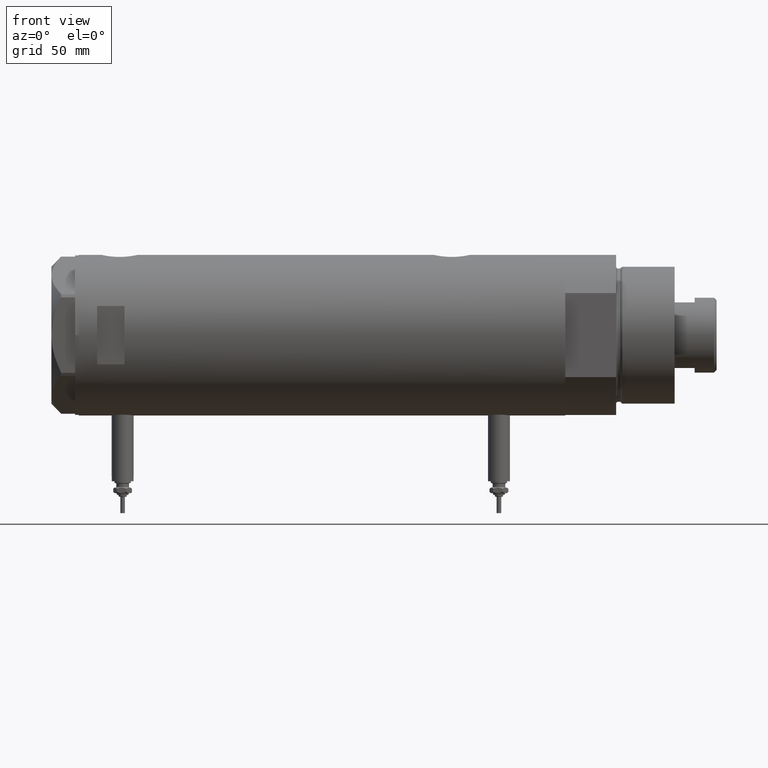
[diagram: clean part render]
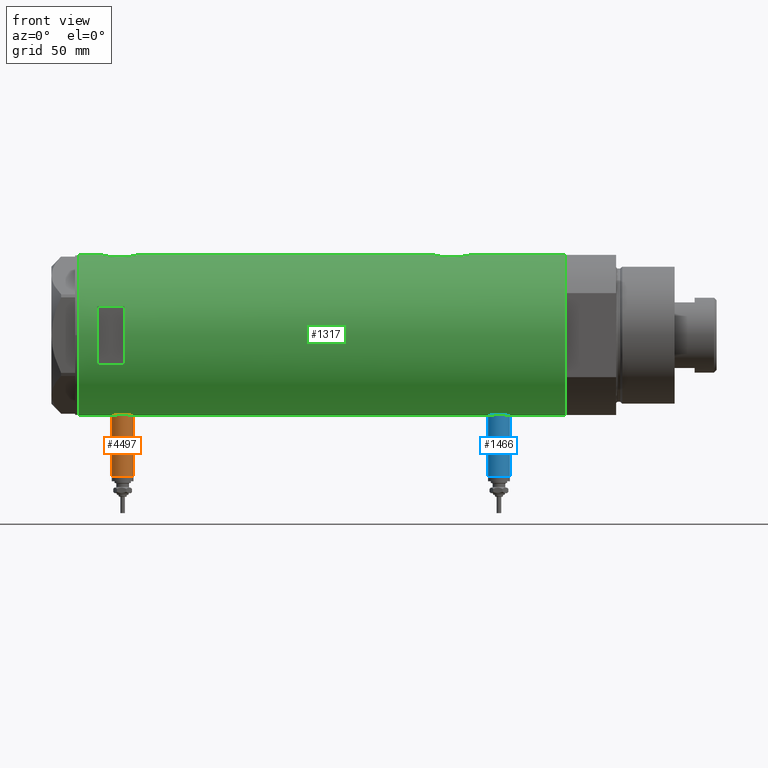
[diagram: same view with three faces highlighted in distinct colors, each labeled with its STEP entity id]
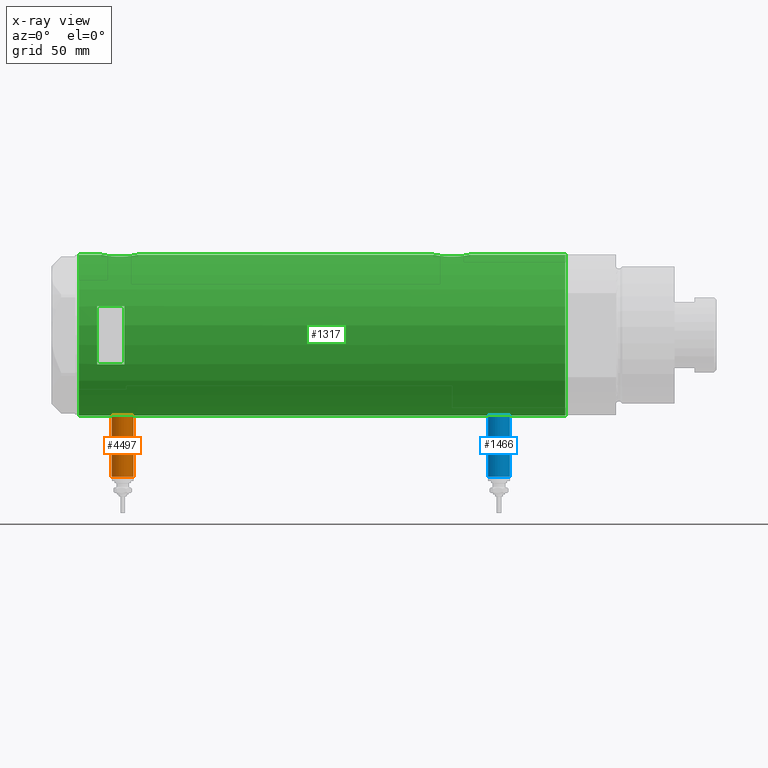
[diagram: x-ray of the same camera — body ghosted, the three highlighted faces saturated]
A machine part, front view with three faces highlighted in distinct colors.
The next image is the same camera in x-ray (body ghosted, the three faces saturated) — at least one of them is partly hidden behind the body in this view.
Their STEP definitions:

[orange] entity #4497 — the highlighted cylindrical surface (edge-blend (fillet) strip) has radius 6 mm, axis along (0, 0, 1).
#57 = DIRECTION ( 'NONE',  ( -1.000000000000000000, 0.000000000000000000, 0.000000000000000000 ) ) ;
#254 = CARTESIAN_POINT ( 'NONE',  ( -42.79999999999999716, 7.347880794884101001E-16, 115.1999999999999886 ) ) ;
#304 = VECTOR ( 'NONE', #820, 1000.000000000000000 ) ;
#659 = FACE_OUTER_BOUND ( 'NONE', #5389, .T. ) ;
#675 = CARTESIAN_POINT ( 'NONE',  ( -77.50000000000000000, 0.000000000000000000, 109.1999999999999886 ) ) ;
#746 = CARTESIAN_POINT ( 'NONE',  ( -77.50000000000000000, 7.347880794884104945E-16, 115.1999999999999886 ) ) ;
#801 = ORIENTED_EDGE ( 'NONE', *, *, #4834, .T. ) ;
#820 = DIRECTION ( 'NONE',  ( 1.000000000000000000, -0.000000000000000000, -0.000000000000000000 ) ) ;
#898 = ORIENTED_EDGE ( 'NONE', *, *, #4235, .F. ) ;
#1058 = EDGE_CURVE ( 'NONE', #4619, #3372, #2117, .T. ) ;
#1152 = CARTESIAN_POINT ( 'NONE',  ( -42.79999999999999716, 0.000000000000000000, 103.2000000000000028 ) ) ;
#1611 = DIRECTION ( 'NONE',  ( -1.000000000000000000, 0.000000000000000000, 0.000000000000000000 ) ) ;
#1788 = AXIS2_PLACEMENT_3D ( 'NONE', #675, #1611, #4361 ) ;
#2117 = LINE ( 'NONE', #4927, #304 ) ;
#2371 = CIRCLE ( 'NONE', #1788, 5.999999999999991118 ) ;
#2513 = DIRECTION ( 'NONE',  ( 1.000000000000000000, -0.000000000000000000, -0.000000000000000000 ) ) ;
#2877 = ORIENTED_EDGE ( 'NONE', *, *, #1058, .T. ) ;
#3140 = CARTESIAN_POINT ( 'NONE',  ( -77.50000000000000000, 7.347880794884101001E-16, 115.1999999999999886 ) ) ;
#3178 = ORIENTED_EDGE ( 'NONE', *, *, #4417, .F. ) ;
#3372 = VERTEX_POINT ( 'NONE', #1152 ) ;
#3474 = LINE ( 'NONE', #746, #3729 ) ;
#3681 = CARTESIAN_POINT ( 'NONE',  ( -77.50000000000000000, 0.000000000000000000, 103.2000000000000028 ) ) ;
#3729 = VECTOR ( 'NONE', #4462, 1000.000000000000000 ) ;
#3931 = CARTESIAN_POINT ( 'NONE',  ( -77.50000000000000000, 0.000000000000000000, 109.1999999999999886 ) ) ;
#4227 = AXIS2_PLACEMENT_3D ( 'NONE', #3931, #2513, #4373 ) ;
#4235 = EDGE_CURVE ( 'NONE', #4619, #5985, #2371, .T. ) ;
#4250 = CARTESIAN_POINT ( 'NONE',  ( -42.79999999999999716, 0.000000000000000000, 109.1999999999999886 ) ) ;
#4361 = DIRECTION ( 'NONE',  ( 0.000000000000000000, 0.000000000000000000, 1.000000000000000000 ) ) ;
#4373 = DIRECTION ( 'NONE',  ( 0.000000000000000000, 0.000000000000000000, -1.000000000000000000 ) ) ;
#4417 = EDGE_CURVE ( 'NONE', #5985, #5890, #3474, .T. ) ;
#4462 = DIRECTION ( 'NONE',  ( 1.000000000000000000, -0.000000000000000000, -0.000000000000000000 ) ) ;
#4492 = AXIS2_PLACEMENT_3D ( 'NONE', #4250, #57, #5617 ) ;
#4497 = ADVANCED_FACE ( 'NONE', ( #659 ), #4879, .T. ) ;
#4619 = VERTEX_POINT ( 'NONE', #3681 ) ;
#4834 = EDGE_CURVE ( 'NONE', #3372, #5890, #5918, .T. ) ;
#4879 = CYLINDRICAL_SURFACE ( 'NONE', #4227, 5.999999999999991118 ) ;
#4927 = CARTESIAN_POINT ( 'NONE',  ( -77.50000000000000000, 0.000000000000000000, 103.2000000000000028 ) ) ;
#5389 = EDGE_LOOP ( 'NONE', ( #3178, #898, #2877, #801 ) ) ;
#5617 = DIRECTION ( 'NONE',  ( 0.000000000000000000, 0.000000000000000000, 1.000000000000000000 ) ) ;
#5890 = VERTEX_POINT ( 'NONE', #254 ) ;
#5918 = CIRCLE ( 'NONE', #4492, 5.999999999999991118 ) ;
#5985 = VERTEX_POINT ( 'NONE', #3140 ) ;

[blue] entity #1466 — the highlighted cylindrical surface (edge-blend (fillet) strip) has radius 6 mm, axis along (0, 0, 1).
#54 = LINE ( 'NONE', #83, #516 ) ;
#83 = CARTESIAN_POINT ( 'NONE',  ( -77.50000000000000000, 7.347880794884122694E-16, -90.89999999999997726 ) ) ;
#153 = ORIENTED_EDGE ( 'NONE', *, *, #3503, .T. ) ;
#182 = ORIENTED_EDGE ( 'NONE', *, *, #5300, .F. ) ;
#284 = DIRECTION ( 'NONE',  ( 0.000000000000000000, 0.000000000000000000, 1.000000000000000000 ) ) ;
#516 = VECTOR ( 'NONE', #3741, 1000.000000000000000 ) ;
#640 = CARTESIAN_POINT ( 'NONE',  ( -77.50000000000000000, 0.000000000000000000, -102.8999999999999915 ) ) ;
#677 = EDGE_LOOP ( 'NONE', ( #4439, #182, #1739, #153 ) ) ;
#915 = CIRCLE ( 'NONE', #4234, 6.000000000000005329 ) ;
#999 = DIRECTION ( 'NONE',  ( -1.000000000000000000, 0.000000000000000000, 0.000000000000000000 ) ) ;
#1229 = CYLINDRICAL_SURFACE ( 'NONE', #3514, 6.000000000000005329 ) ;
#1231 = DIRECTION ( 'NONE',  ( -1.000000000000000000, 0.000000000000000000, 0.000000000000000000 ) ) ;
#1327 = CARTESIAN_POINT ( 'NONE',  ( -42.79999999999999716, 0.000000000000000000, -102.8999999999999915 ) ) ;
#1462 = CARTESIAN_POINT ( 'NONE',  ( -42.79999999999999716, 7.347880794884119736E-16, -90.89999999999997726 ) ) ;
#1466 = ADVANCED_FACE ( 'NONE', ( #1603 ), #1229, .T. ) ;
#1603 = FACE_OUTER_BOUND ( 'NONE', #677, .T. ) ;
#1739 = ORIENTED_EDGE ( 'NONE', *, *, #5141, .T. ) ;
#2019 = LINE ( 'NONE', #640, #5632 ) ;
#2159 = EDGE_CURVE ( 'NONE', #5445, #4836, #54, .T. ) ;
#2222 = CARTESIAN_POINT ( 'NONE',  ( -77.50000000000000000, 0.000000000000000000, -96.89999999999999147 ) ) ;
#2778 = CARTESIAN_POINT ( 'NONE',  ( -77.50000000000000000, 0.000000000000000000, -102.8999999999999915 ) ) ;
#2824 = DIRECTION ( 'NONE',  ( 0.000000000000000000, 0.000000000000000000, 1.000000000000000000 ) ) ;
#3119 = AXIS2_PLACEMENT_3D ( 'NONE', #4057, #1231, #284 ) ;
#3125 = CIRCLE ( 'NONE', #3119, 6.000000000000005329 ) ;
#3148 = DIRECTION ( 'NONE',  ( 0.000000000000000000, 0.000000000000000000, -1.000000000000000000 ) ) ;
#3503 = EDGE_CURVE ( 'NONE', #4987, #4836, #915, .T. ) ;
#3514 = AXIS2_PLACEMENT_3D ( 'NONE', #2222, #3632, #3148 ) ;
#3632 = DIRECTION ( 'NONE',  ( 1.000000000000000000, -0.000000000000000000, -0.000000000000000000 ) ) ;
#3741 = DIRECTION ( 'NONE',  ( 1.000000000000000000, -0.000000000000000000, -0.000000000000000000 ) ) ;
#4057 = CARTESIAN_POINT ( 'NONE',  ( -77.50000000000000000, 0.000000000000000000, -96.89999999999999147 ) ) ;
#4162 = CARTESIAN_POINT ( 'NONE',  ( -42.79999999999999716, 0.000000000000000000, -96.89999999999999147 ) ) ;
#4234 = AXIS2_PLACEMENT_3D ( 'NONE', #4162, #999, #2824 ) ;
#4439 = ORIENTED_EDGE ( 'NONE', *, *, #2159, .F. ) ;
#4555 = VERTEX_POINT ( 'NONE', #2778 ) ;
#4836 = VERTEX_POINT ( 'NONE', #1462 ) ;
#4987 = VERTEX_POINT ( 'NONE', #1327 ) ;
#5141 = EDGE_CURVE ( 'NONE', #4555, #4987, #2019, .T. ) ;
#5192 = DIRECTION ( 'NONE',  ( 1.000000000000000000, -0.000000000000000000, -0.000000000000000000 ) ) ;
#5300 = EDGE_CURVE ( 'NONE', #4555, #5445, #3125, .T. ) ;
#5445 = VERTEX_POINT ( 'NONE', #5570 ) ;
#5570 = CARTESIAN_POINT ( 'NONE',  ( -77.50000000000000000, 7.347880794884119736E-16, -90.89999999999997726 ) ) ;
#5632 = VECTOR ( 'NONE', #5192, 1000.000000000000000 ) ;

[green] entity #1317 — the highlighted cylindrical surface (partial cylindrical patch) has radius 44 mm, axis along (-1, -0, 0).
#18 = CARTESIAN_POINT ( 'NONE',  ( 43.77763691689010983, -4.427538730370037534, -62.12757287791929173 ) ) ;
#106 = CARTESIAN_POINT ( 'NONE',  ( 43.98543813568861793, -1.304985013906736713, 120.8365306627387525 ) ) ;
#107 = VECTOR ( 'NONE', #5925, 1000.000000000000000 ) ;
#120 = VERTEX_POINT ( 'NONE', #2300 ) ;
#149 = CARTESIAN_POINT ( 'NONE',  ( 43.35257225115238100, -7.523216248090028202, 104.3039469640765304 ) ) ;
#151 = CARTESIAN_POINT ( 'NONE',  ( -43.93596008603760339, -2.395372424984027582, 103.4165081946938756 ) ) ;
#175 = CARTESIAN_POINT ( 'NONE',  ( 43.39114022679083860, -7.298186114522533074, 117.7441727949206154 ) ) ;
#179 = CARTESIAN_POINT ( 'NONE',  ( -43.55388615229803406, -6.249720082677240107, 108.7826748588801706 ) ) ;
#180 = CARTESIAN_POINT ( 'NONE',  ( 0.000000000000000000, 0.000000000000000000, 123.1999999999999744 ) ) ;
#181 = CARTESIAN_POINT ( 'NONE',  ( -44.00000000000000000, 5.388445781982983516E-15, -103.1499999999999915 ) ) ;
#187 = CARTESIAN_POINT ( 'NONE',  ( -43.83513771791772484, -3.820747781112549202, -91.93678981703624231 ) ) ;
#203 = CARTESIAN_POINT ( 'NONE',  ( -43.87623998657198143, -3.302247739865014964, 103.8896565648025643 ) ) ;
#209 = CARTESIAN_POINT ( 'NONE',  ( -44.00000000000000000, 5.388445916248353619E-15, -133.1999999999999886 ) ) ;
#220 = ORIENTED_EDGE ( 'NONE', *, *, #2135, .F. ) ;
#235 = CARTESIAN_POINT ( 'NONE',  ( 42.86761451923558042, -9.918101748202658996, 112.2186752354962636 ) ) ;
#240 = CARTESIAN_POINT ( 'NONE',  ( -43.91347832647110039, -2.763895659397271665, 103.5906135062241447 ) ) ;
#243 = VECTOR ( 'NONE', #497, 1000.000000000000000 ) ;
#264 = CARTESIAN_POINT ( 'NONE',  ( -43.83572624786197025, -3.813948911733268776, 104.2316356977933935 ) ) ;
#270 = CARTESIAN_POINT ( 'NONE',  ( -43.87623998657198143, -3.302247739865014964, -102.2103434351974158 ) ) ;
#318 = CIRCLE ( 'NONE', #1109, 44.00000000000000000 ) ;
#357 = VERTEX_POINT ( 'NONE', #3507 ) ;
#385 = CARTESIAN_POINT ( 'NONE',  ( -43.58327167020068060, -6.041691433183235205, 110.8132755078336373 ) ) ;
#475 = CARTESIAN_POINT ( 'NONE',  ( -44.00000000000000000, 4.742435893011557518E-16, -90.64999999999997726 ) ) ;
#479 = CARTESIAN_POINT ( 'NONE',  ( 43.88549648731376607, -3.229309612650775652, -61.61335697513614917 ) ) ;
#483 = CARTESIAN_POINT ( 'NONE',  ( 15.96871942267132027, -40.99999999999999289, 108.1999999999999602 ) ) ;
#497 = DIRECTION ( 'NONE',  ( 0.000000000000000000, 0.000000000000000000, 1.000000000000000000 ) ) ;
#546 = EDGE_CURVE ( 'NONE', #4205, #5367, #1056, .T. ) ;
#604 = CARTESIAN_POINT ( 'NONE',  ( 43.57553740812844723, -6.102230194686623754, 102.9710034401132788 ) ) ;
#609 = CARTESIAN_POINT ( 'NONE',  ( 42.96573602780769363, -9.487415353952515673, -74.32734544583620107 ) ) ;
#644 = CARTESIAN_POINT ( 'NONE',  ( 43.80655905412562134, -4.132395729537633677, 120.0120532619375950 ) ) ;
#647 = CARTESIAN_POINT ( 'NONE',  ( -43.59994860325051036, -5.920144153815573240, 107.1859364243023975 ) ) ;
#655 = CARTESIAN_POINT ( 'NONE',  ( -43.57664920749031978, -6.089110472216501257, -98.32363086869413848 ) ) ;
#664 = ORIENTED_EDGE ( 'NONE', *, *, #4607, .T. ) ;
#674 = CARTESIAN_POINT ( 'NONE',  ( 43.50370990764398726, -6.606474645717129945, -63.56479064715113481 ) ) ;
#682 = CARTESIAN_POINT ( 'NONE',  ( -43.80623767923739109, -4.134861581628527460, -92.19563632739300374 ) ) ;
#695 = CARTESIAN_POINT ( 'NONE',  ( 43.27861175590267351, -7.937636171351968528, 104.8089713200900377 ) ) ;
#700 = CARTESIAN_POINT ( 'NONE',  ( -43.57664920749031978, -6.089110472216501257, 107.7763691313058985 ) ) ;
#733 = CARTESIAN_POINT ( 'NONE',  ( 42.92612181419237061, -9.662173761604313071, -68.50200210390286770 ) ) ;
#742 = CARTESIAN_POINT ( 'NONE',  ( -43.55981666146650610, -6.208773019004409477, -97.72437999193616065 ) ) ;
#769 = DIRECTION ( 'NONE',  ( 0.000000000000000000, 0.000000000000000000, 1.000000000000000000 ) ) ;
#865 = VERTEX_POINT ( 'NONE', #181 ) ;
#871 = CARTESIAN_POINT ( 'NONE',  ( -43.95404166778755695, -2.020054257598466574, 115.1180894548565163 ) ) ;
#879 = CARTESIAN_POINT ( 'NONE',  ( 0.000000000000000000, 0.000000000000000000, 108.1999999999999602 ) ) ;
#893 = VECTOR ( 'NONE', #4171, 1000.000000000000000 ) ;
#939 = CARTESIAN_POINT ( 'NONE',  ( 43.98543813568861793, -1.304985013906734714, -61.16346933726119772 ) ) ;
#1010 = DIRECTION ( 'NONE',  ( 0.000000000000000000, 0.000000000000000000, 1.000000000000000000 ) ) ;
#1055 = CARTESIAN_POINT ( 'NONE',  ( -15.96871942267132027, -40.99999999999999289, 108.1999999999999602 ) ) ;
#1056 = B_SPLINE_CURVE_WITH_KNOTS ( 'NONE', 3,
 ( #5810, #1998, #106, #4775, #4288, #644, #2497, #1572, #2523, #1960, #4383, #175, #3823, #4358, #4413, #3880, #2461, #5719, #2050, #3007, #3851, #235, #4325, #3425, #5668, #5282, #3367, #5222, #5694, #1171, #1063, #695, #149, #1127, #2916, #2983, #604, #3392, #5786, #5246, #1091, #2947, #1635, #3459, #4841, #3908, #5754 ),
 .UNSPECIFIED., .F., .F.,
 ( 4, 2, 2, 2, 2, 2, 2, 2, 2, 2, 1, 2, 2, 2, 2, 2, 2, 2, 2, 2, 2, 2, 2, 4 ),
 ( 0.03136730421198213881, 0.03332724096696806915, 0.03528717772195399949, 0.03626714609944696466, 0.03724711447693992289, 0.03920705123192585323, 0.04018701960941880452, 0.04116698798691175581, 0.04312692474189768616, 0.04410689311939065826, 0.04508686149688362343, 0.04606682987437659554, 0.04704679825186956071, 0.04900673500685545636, 0.05096667176184135201, 0.05292660851682724765, 0.05390657689432017119, 0.05488654527181310167, 0.05586651364930603214, 0.05684648202679896262, 0.05880641878178481663, 0.05978638715927775404, 0.06076635553677069146, 0.06272629229175656629 ),
 .UNSPECIFIED. ) ;
#1063 = CARTESIAN_POINT ( 'NONE',  ( 43.24192112218943151, -8.134529092006102857, 105.0744777013589157 ) ) ;
#1066 = CARTESIAN_POINT ( 'NONE',  ( 43.57553740812846854, -6.102230194686627307, -79.02899655988669281 ) ) ;
#1084 = FACE_OUTER_BOUND ( 'NONE', #2785, .T. ) ;
#1091 = CARTESIAN_POINT ( 'NONE',  ( 43.85817087158037708, -3.542878095418179107, 101.5429633888447825 ) ) ;
#1096 = CARTESIAN_POINT ( 'NONE',  ( -43.99432382855034973, -0.8140126287075730716, 102.9895783318308560 ) ) ;
#1106 = EDGE_CURVE ( 'NONE', #4961, #357, #3073, .T. ) ;
#1109 = AXIS2_PLACEMENT_3D ( 'NONE', #879, #1010, #4730 ) ;
#1110 = CARTESIAN_POINT ( 'NONE',  ( -43.55380622335315621, -6.250277076879243943, -96.49110166609808914 ) ) ;
#1127 = CARTESIAN_POINT ( 'NONE',  ( 43.39001814939472013, -7.304817421876465211, 104.0629653932832781 ) ) ;
#1130 = CARTESIAN_POINT ( 'NONE',  ( -43.55964145621772587, -6.209995197331129368, 110.0152361338357139 ) ) ;
#1137 = CARTESIAN_POINT ( 'NONE',  ( -43.97029046111977379, -1.628482392291957126, -90.86241380207947316 ) ) ;
#1159 = CARTESIAN_POINT ( 'NONE',  ( -43.80686114384900520, -4.128296917151112133, -101.6101585512830923 ) ) ;
#1171 = CARTESIAN_POINT ( 'NONE',  ( 43.13689707656755701, -8.680169016269172033, 105.8916309788879886 ) ) ;
#1177 = CARTESIAN_POINT ( 'NONE',  ( 42.99316244204496940, -9.359736474891654723, -67.56396979967824734 ) ) ;
#1186 = CARTESIAN_POINT ( 'NONE',  ( -43.66524845950890210, -5.422010366683132965, -100.0353804335297951 ) ) ;
#1192 = VERTEX_POINT ( 'NONE', #1055 ) ;
#1220 = CARTESIAN_POINT ( 'NONE',  ( -44.00000000000000000, 4.742435893011557518E-16, -90.64999999999997726 ) ) ;
#1237 = CARTESIAN_POINT ( 'NONE',  ( -43.91398925748691084, -2.775454910411443876, 114.8147077568105914 ) ) ;
#1248 = CARTESIAN_POINT ( 'NONE',  ( 44.00000000000000000, 0.000000000000000000, -133.1999999999999886 ) ) ;
#1254 = ORIENTED_EDGE ( 'NONE', *, *, #4480, .F. ) ;
#1270 = DIRECTION ( 'NONE',  ( 1.000000000000000000, 0.000000000000000000, 0.000000000000000000 ) ) ;
#1280 = VECTOR ( 'NONE', #1639, 1000.000000000000000 ) ;
#1300 = CARTESIAN_POINT ( 'NONE',  ( -43.74813644611199948, -4.709999724143497879, 113.3284404394322280 ) ) ;
#1317 = ADVANCED_FACE ( 'NONE', ( #1084, #3479 ), #4837, .T. ) ;
#1403 = CIRCLE ( 'NONE', #4525, 44.00000000000000000 ) ;
#1410 = ORIENTED_EDGE ( 'NONE', *, *, #3376, .F. ) ;
#1522 = CARTESIAN_POINT ( 'NONE',  ( 43.27861175590268772, -7.937636171351970304, -77.19102867990997652 ) ) ;
#1547 = CARTESIAN_POINT ( 'NONE',  ( -44.00000000000001421, -0.4080709675389184166, 102.9499999999999886 ) ) ;
#1572 = CARTESIAN_POINT ( 'NONE',  ( 43.71528002050701645, -5.005885132985640418, 119.5630630671448529 ) ) ;
#1579 = CARTESIAN_POINT ( 'NONE',  ( 43.85817087158039129, -3.542878095418179996, -80.45703661115524596 ) ) ;
#1591 = CARTESIAN_POINT ( 'NONE',  ( -43.64064219598290606, -5.614224114468902904, -99.67685489619469763 ) ) ;
#1596 = ORIENTED_EDGE ( 'NONE', *, *, #3219, .T. ) ;
#1599 = AXIS2_PLACEMENT_3D ( 'NONE', #180, #2025, #3434 ) ;
#1610 = CARTESIAN_POINT ( 'NONE',  ( 43.50208939911752992, -6.605519787823896927, -78.61487246254434069 ) ) ;
#1619 = CARTESIAN_POINT ( 'NONE',  ( -43.95442538259509746, -2.011679190499023662, -102.8209354650977758 ) ) ;
#1628 = DIRECTION ( 'NONE',  ( 0.000000000000000000, 0.000000000000000000, 1.000000000000000000 ) ) ;
#1635 = CARTESIAN_POINT ( 'NONE',  ( 43.92391465552169194, -2.605621203777309436, 101.2398198489822221 ) ) ;
#1638 = CARTESIAN_POINT ( 'NONE',  ( 42.85249883256043546, -9.983208936152871971, -70.43427783458177771 ) ) ;
#1639 = DIRECTION ( 'NONE',  ( 0.000000000000000000, 0.000000000000000000, 1.000000000000000000 ) ) ;
#1645 = CARTESIAN_POINT ( 'NONE',  ( -43.74870614644074607, -4.704745394280565485, -101.0344648734002391 ) ) ;
#1665 = CARTESIAN_POINT ( 'NONE',  ( -43.99417593155912698, -0.8219945290704717689, 115.4093810241296012 ) ) ;
#1748 = CARTESIAN_POINT ( 'NONE',  ( 44.00000000000000000, -2.552687571866728611E-15, 100.8999999999999915 ) ) ;
#1771 = CARTESIAN_POINT ( 'NONE',  ( 15.96871942267132027, -40.99999999999999289, 123.1999999999999744 ) ) ;
#1858 = VERTEX_POINT ( 'NONE', #2573 ) ;
#1877 = CARTESIAN_POINT ( 'NONE',  ( 43.71528002050702355, -5.005885132985642194, -62.43693693285512580 ) ) ;
#1891 = ORIENTED_EDGE ( 'NONE', *, *, #3064, .F. ) ;
#1906 = CARTESIAN_POINT ( 'NONE',  ( 43.92776409818818451, -2.602555515054471691, -61.42196650712917005 ) ) ;
#1937 = EDGE_CURVE ( 'NONE', #3640, #1192, #2216, .T. ) ;
#1960 = CARTESIAN_POINT ( 'NONE',  ( 43.57790701154752355, -6.104591320335877036, 118.8474130089493173 ) ) ;
#1998 = CARTESIAN_POINT ( 'NONE',  ( 44.00000000000000000, -0.6537011444665535853, 120.8999999999999631 ) ) ;
#2000 = CARTESIAN_POINT ( 'NONE',  ( 43.24192112218942441, -8.134529092006102857, -76.92552229864108426 ) ) ;
#2009 = CARTESIAN_POINT ( 'NONE',  ( -43.88927795770375440, -3.124736516396337649, -102.3166740492380455 ) ) ;
#2024 = CARTESIAN_POINT ( 'NONE',  ( 43.35257225115238811, -7.523216248090029090, -77.69605303592344114 ) ) ;
#2025 = DIRECTION ( 'NONE',  ( -0.000000000000000000, 0.000000000000000000, -1.000000000000000000 ) ) ;
#2033 = CARTESIAN_POINT ( 'NONE',  ( -43.91398925748691084, -2.775454910411443876, -91.28529224318931767 ) ) ;
#2050 = CARTESIAN_POINT ( 'NONE',  ( 42.96858625215907779, -9.471543237354833167, 114.1244477931078194 ) ) ;
#2054 = CARTESIAN_POINT ( 'NONE',  ( 43.07447880731469780, -8.980869115410030190, -66.65290029795895066 ) ) ;
#2055 = LINE ( 'NONE', #3462, #2963 ) ;
#2090 = CARTESIAN_POINT ( 'NONE',  ( 42.92195198079052432, -9.681069926205537968, -73.68932500906512928 ) ) ;
#2098 = CARTESIAN_POINT ( 'NONE',  ( -44.00000000000001421, -0.4080709675389184166, -103.1500000000000199 ) ) ;
#2116 = CARTESIAN_POINT ( 'NONE',  ( -43.64013512596971367, -5.618144550806293047, 111.9688425437316681 ) ) ;
#2122 = CARTESIAN_POINT ( 'NONE',  ( -43.60904414879379942, -5.852991024272603759, -94.69843683347090746 ) ) ;
#2128 = CARTESIAN_POINT ( 'NONE',  ( 0.000000000000000000, 0.000000000000000000, 133.1999999999999886 ) ) ;
#2135 = EDGE_CURVE ( 'NONE', #1192, #2139, #318, .T. ) ;
#2139 = VERTEX_POINT ( 'NONE', #483 ) ;
#2189 = DIRECTION ( 'NONE',  ( -0.000000000000000000, -0.000000000000000000, -1.000000000000000000 ) ) ;
#2216 = LINE ( 'NONE', #3622, #4986 ) ;
#2231 = CARTESIAN_POINT ( 'NONE',  ( -43.71863308610073773, -4.973248429199020215, 113.0073779012116830 ) ) ;
#2258 = VERTEX_POINT ( 'NONE', #209 ) ;
#2300 = CARTESIAN_POINT ( 'NONE',  ( 44.00000000000000000, -3.917155089190972685E-21, -61.10000000000000142 ) ) ;
#2436 = VERTEX_POINT ( 'NONE', #3075 ) ;
#2461 = CARTESIAN_POINT ( 'NONE',  ( 43.07447880731470491, -8.980869115410039072, 115.3470997020410209 ) ) ;
#2466 = CARTESIAN_POINT ( 'NONE',  ( 43.94187300917955952, -2.283844398366611905, -80.84126046817048916 ) ) ;
#2479 = CARTESIAN_POINT ( 'NONE',  ( -43.93596008603760339, -2.395372424984027582, -102.6834918053061187 ) ) ;
#2497 = CARTESIAN_POINT ( 'NONE',  ( 43.77763691689010273, -4.427538730370040199, 119.8724271220806941 ) ) ;
#2499 = CARTESIAN_POINT ( 'NONE',  ( 43.57790701154753776, -6.104591320335878812, -63.15258699105066853 ) ) ;
#2509 = CARTESIAN_POINT ( 'NONE',  ( -43.59959777593760322, -5.922725608094071781, -94.89350688782582210 ) ) ;
#2523 = CARTESIAN_POINT ( 'NONE',  ( 43.68175117880464597, -5.289576318274436417, 119.3927754329155562 ) ) ;
#2527 = CARTESIAN_POINT ( 'NONE',  ( 43.98503203903423753, -1.316644100880407953, -81.03472955295632119 ) ) ;
#2535 = CARTESIAN_POINT ( 'NONE',  ( -43.74813644611199948, -4.709999724143497879, -92.77155956056769526 ) ) ;
#2536 = ORIENTED_EDGE ( 'NONE', *, *, #3368, .F. ) ;
#2557 = CARTESIAN_POINT ( 'NONE',  ( -43.55981666146650610, -6.208773019004409477, 108.3756200080638195 ) ) ;
#2573 = CARTESIAN_POINT ( 'NONE',  ( 44.00000000000000000, 0.000000000000000000, 133.1999999999999886 ) ) ;
#2588 = CARTESIAN_POINT ( 'NONE',  ( 42.96858625215908489, -9.471543237354836720, -67.87555220689218061 ) ) ;
#2596 = CARTESIAN_POINT ( 'NONE',  ( -43.55388615229803406, -6.249720082677240107, -97.31732514111982368 ) ) ;
#2624 = CARTESIAN_POINT ( 'NONE',  ( -44.00000000000000000, 5.388445916248353619E-15, -133.1999999999999886 ) ) ;
#2681 = ORIENTED_EDGE ( 'NONE', *, *, #546, .F. ) ;
#2700 = CARTESIAN_POINT ( 'NONE',  ( -43.88932649443422918, -3.137583818903199262, 114.6209903805954013 ) ) ;
#2729 = CARTESIAN_POINT ( 'NONE',  ( -43.94477385411916970, -2.211843467998029666, 115.0490722992286408 ) ) ;
#2745 = AXIS2_PLACEMENT_3D ( 'NONE', #5781, #1628, #4885 ) ;
#2776 = VERTEX_POINT ( 'NONE', #4516 ) ;
#2785 = EDGE_LOOP ( 'NONE', ( #1254, #1596, #5894, #2536, #3052, #2681, #664, #3829, #5335, #1410, #3954, #1891 ) ) ;
#2809 = EDGE_CURVE ( 'NONE', #2139, #4657, #4014, .T. ) ;
#2844 = ORIENTED_EDGE ( 'NONE', *, *, #1937, .F. ) ;
#2916 = CARTESIAN_POINT ( 'NONE',  ( 43.46477581456304051, -6.845969322274853219, 103.6035553987669005 ) ) ;
#2920 = CARTESIAN_POINT ( 'NONE',  ( 43.77905627191558580, -4.445085099228550440, -80.08140834316033363 ) ) ;
#2947 = CARTESIAN_POINT ( 'NONE',  ( 43.88203303552251100, -3.235230624304767932, 101.4320738693601527 ) ) ;
#2952 = CARTESIAN_POINT ( 'NONE',  ( -43.66524845950890210, -5.422010366683132965, 106.0646195664701850 ) ) ;
#2963 = VECTOR ( 'NONE', #5312, 1000.000000000000000 ) ;
#2966 = CARTESIAN_POINT ( 'NONE',  ( -43.57636709704394917, -6.091127289750676077, -95.48500674339015859 ) ) ;
#2983 = CARTESIAN_POINT ( 'NONE',  ( 43.50208939911752992, -6.605519787823896927, 103.3851275374556877 ) ) ;
#2985 = CARTESIAN_POINT ( 'NONE',  ( 43.27890888111421930, -7.936045294464958211, -65.00681563342804736 ) ) ;
#2994 = CARTESIAN_POINT ( 'NONE',  ( -43.97729452866927602, -1.427712738744854715, -90.81177092556575303 ) ) ;
#3007 = CARTESIAN_POINT ( 'NONE',  ( 42.92612181419236350, -9.662173761604313071, 113.4979978960971465 ) ) ;
#3012 = CARTESIAN_POINT ( 'NONE',  ( -43.71916086763248899, -4.968610719017467758, 105.3866400114537214 ) ) ;
#3038 = CARTESIAN_POINT ( 'NONE',  ( 42.84850870634927134, -10.00026508230968325, -71.75583915121741541 ) ) ;
#3050 = CARTESIAN_POINT ( 'NONE',  ( -43.59994860325051036, -5.920144153815573240, -98.91406357569759678 ) ) ;
#3052 = ORIENTED_EDGE ( 'NONE', *, *, #4241, .T. ) ;
#3064 = EDGE_CURVE ( 'NONE', #865, #4961, #3978, .T. ) ;
#3073 = LINE ( 'NONE', #4474, #1280 ) ;
#3075 = CARTESIAN_POINT ( 'NONE',  ( 44.00000000000000000, 0.000000000000000000, -133.1999999999999886 ) ) ;
#3216 = CARTESIAN_POINT ( 'NONE',  ( 44.00000000000000000, -3.917155089190972685E-21, -61.10000000000000142 ) ) ;
#3219 = EDGE_CURVE ( 'NONE', #2258, #2436, #1403, .T. ) ;
#3329 = ORIENTED_EDGE ( 'NONE', *, *, #4155, .F. ) ;
#3367 = CARTESIAN_POINT ( 'NONE',  ( 42.92195198079053142, -9.681069926205539744, 108.3106749909348281 ) ) ;
#3368 = EDGE_CURVE ( 'NONE', #120, #5653, #3766, .T. ) ;
#3370 = CARTESIAN_POINT ( 'NONE',  ( 42.86761451923557331, -9.918101748202655443, -69.78132476450373645 ) ) ;
#3376 = EDGE_CURVE ( 'NONE', #357, #2776, #5492, .T. ) ;
#3392 = CARTESIAN_POINT ( 'NONE',  ( 43.61181667275830165, -5.838254419127787642, 102.7745589058250459 ) ) ;
#3395 = CARTESIAN_POINT ( 'NONE',  ( -43.80686114384900520, -4.128296917151112133, 104.4898414487168878 ) ) ;
#3405 = CARTESIAN_POINT ( 'NONE',  ( -43.83572624786197025, -3.813948911733268776, -101.8683643022066150 ) ) ;
#3425 = CARTESIAN_POINT ( 'NONE',  ( 42.84860178791322483, -9.999866241079296003, 111.2339638269416184 ) ) ;
#3432 = CARTESIAN_POINT ( 'NONE',  ( 42.84860178791323193, -9.999866241079299556, -70.76603617305836735 ) ) ;
#3434 = DIRECTION ( 'NONE',  ( 1.000000000000000000, 0.000000000000000000, 0.000000000000000000 ) ) ;
#3442 = AXIS2_PLACEMENT_3D ( 'NONE', #2128, #769, #5825 ) ;
#3459 = CARTESIAN_POINT ( 'NONE',  ( 43.94187300917955241, -2.283844398366610129, 101.1587395318294966 ) ) ;
#3461 = CARTESIAN_POINT ( 'NONE',  ( 43.61181667275830875, -5.838254419127786754, -79.22544109417493985 ) ) ;
#3462 = CARTESIAN_POINT ( 'NONE',  ( 44.00000000000000000, 0.000000000000000000, -133.1999999999999886 ) ) ;
#3469 = CARTESIAN_POINT ( 'NONE',  ( -43.91347832647110039, -2.763895659397271665, -102.5093864937758354 ) ) ;
#3479 = FACE_BOUND ( 'NONE', #5731, .T. ) ;
#3486 = CARTESIAN_POINT ( 'NONE',  ( 43.13833976206233700, -8.672905216733548528, -66.07967078979183384 ) ) ;
#3507 = CARTESIAN_POINT ( 'NONE',  ( -44.00000000000000000, 5.388445781982983516E-15, 102.9499999999999886 ) ) ;
#3517 = CARTESIAN_POINT ( 'NONE',  ( -43.97029046111977379, -1.628482392291957126, 115.2375861979205922 ) ) ;
#3607 = CARTESIAN_POINT ( 'NONE',  ( -43.97729452866927602, -1.427712738744854715, 115.2882290744342129 ) ) ;
#3622 = CARTESIAN_POINT ( 'NONE',  ( -15.96871942267132027, -40.99999999999999289, -133.1999999999999886 ) ) ;
#3638 = CARTESIAN_POINT ( 'NONE',  ( -44.00000000000000000, 5.388445916248353619E-15, 133.1999999999999886 ) ) ;
#3640 = VERTEX_POINT ( 'NONE', #4773 ) ;
#3691 = LINE ( 'NONE', #4669, #243 ) ;
#3702 = CARTESIAN_POINT ( 'NONE',  ( 44.00000000000001421, -0.6537011444665502546, -61.10000000000001563 ) ) ;
#3739 = CARTESIAN_POINT ( 'NONE',  ( 43.68175117880464597, -5.289576318274436417, -62.60722456708439410 ) ) ;
#3766 = B_SPLINE_CURVE_WITH_KNOTS ( 'NONE', 3,
 ( #3216, #3702, #939, #1906, #479, #4194, #18, #1877, #3739, #2499, #674, #5789, #3914, #2985, #4386, #3486, #2054, #1177, #2588, #733, #5759, #3370, #1638, #3432, #3038, #3943, #2090, #609, #5250, #5224, #2000, #1522, #2024, #3882, #4843, #1610, #1066, #3461, #5286, #2920, #1579, #4779, #5311, #2466, #2527, #3855, #5333 ),
 .UNSPECIFIED., .F., .F.,
 ( 4, 2, 2, 2, 2, 2, 2, 2, 2, 2, 1, 2, 2, 2, 2, 2, 2, 2, 2, 2, 2, 2, 2, 4 ),
 ( 0.03136730421198213187, 0.03332724096696802751, 0.03528717772195392316, 0.03626714609944686751, 0.03724711447693981187, 0.03920705123192570751, 0.04018701960941865187, 0.04116698798691159622, 0.04312692474189751268, 0.04410689311939047785, 0.04508686149688344302, 0.04606682987437640819, 0.04704679825186937336, 0.04900673500685525513, 0.05096667176184113690, 0.05292660851682702561, 0.05390657689431999078, 0.05488654527181294207, 0.05586651364930590030, 0.05684648202679885853, 0.05880641878178477500, 0.05978638715927772629, 0.06076635553677067064, 0.06272629229175656629 ),
 .UNSPECIFIED. ) ;
#3823 = CARTESIAN_POINT ( 'NONE',  ( 43.35323102813806173, -7.519449998269472246, 117.5004228928426357 ) ) ;
#3827 = CARTESIAN_POINT ( 'NONE',  ( -43.74870614644074607, -4.704745394280565485, 105.0655351265997552 ) ) ;
#3829 = ORIENTED_EDGE ( 'NONE', *, *, #4391, .F. ) ;
#3851 = CARTESIAN_POINT ( 'NONE',  ( 42.89003040145177437, -9.821289533110931558, 112.8649162832999195 ) ) ;
#3855 = CARTESIAN_POINT ( 'NONE',  ( 44.00000000000000711, -0.6628808997490029942, -81.10000000000000853 ) ) ;
#3866 = CARTESIAN_POINT ( 'NONE',  ( -43.99432382855034973, -0.8140126287075730716, -103.1104216681691383 ) ) ;
#3880 = CARTESIAN_POINT ( 'NONE',  ( 43.13833976206234411, -8.672905216733555633, 115.9203292102081519 ) ) ;
#3882 = CARTESIAN_POINT ( 'NONE',  ( 43.39001814939470592, -7.304817421876464323, -77.93703460671675032 ) ) ;
#3892 = CARTESIAN_POINT ( 'NONE',  ( -43.95404166778755695, -2.020054257598466574, -90.98191054514344955 ) ) ;
#3908 = CARTESIAN_POINT ( 'NONE',  ( 43.99999999999998579, -0.6628808997490068800, 100.8999999999999631 ) ) ;
#3911 = EDGE_CURVE ( 'NONE', #2436, #5653, #3691, .T. ) ;
#3914 = CARTESIAN_POINT ( 'NONE',  ( 43.35323102813806884, -7.519449998269458924, -64.49957710715733583 ) ) ;
#3923 = CIRCLE ( 'NONE', #3442, 44.00000000000000000 ) ;
#3943 = CARTESIAN_POINT ( 'NONE',  ( 42.86369059155249062, -9.935849517229277339, -72.40637410018199205 ) ) ;
#3951 = CARTESIAN_POINT ( 'NONE',  ( -43.97755541524606571, -1.419649999726221967, -102.9901114392363297 ) ) ;
#3954 = ORIENTED_EDGE ( 'NONE', *, *, #1106, .F. ) ;
#3976 = CARTESIAN_POINT ( 'NONE',  ( -43.66469451360045895, -5.426465874727613325, -93.77225408135787177 ) ) ;
#3977 = DIRECTION ( 'NONE',  ( 0.000000000000000000, 0.000000000000000000, 1.000000000000000000 ) ) ;
#3978 = B_SPLINE_CURVE_WITH_KNOTS ( 'NONE', 3,
 ( #5771, #2098, #3866, #3951, #5796, #1619, #2479, #3469, #2009, #270, #3405, #1159, #1645, #5339, #1186, #1591, #5263, #3050, #4907, #655, #742, #2596, #1110, #4456, #2966, #4824, #2509, #2122, #4369, #3976, #5298, #2535, #682, #187, #5819, #2033, #4396, #3892, #1137, #2994, #4850, #4596, #1220 ),
 .UNSPECIFIED., .F., .F.,
 ( 4, 2, 2, 1, 2, 2, 2, 2, 2, 2, 2, 2, 2, 2, 2, 2, 2, 2, 2, 2, 2, 4 ),
 ( 0.01956509074799517994, 0.02078761141254040559, 0.02139887174481301668, 0.02201013207708563124, 0.02262139240935824580, 0.02323265274163085689, 0.02445517340617610336, 0.02567769407072134982, 0.02690021473526659629, 0.02751147506753922126, 0.02812273539981184622, 0.02934525606435713085, 0.03056777672890241548, 0.03117903706117506127, 0.03179029739344770011, 0.03301281805799302638, 0.03423533872253835264, 0.03545785938708367196, 0.03668038005162899129, 0.03729164038390166136, 0.03790290071617432449, 0.03912542138071965075 ),
 .UNSPECIFIED. ) ;
#4014 = LINE ( 'NONE', #4957, #5755 ) ;
#4032 = CIRCLE ( 'NONE', #1599, 44.00000000000000000 ) ;
#4067 = CARTESIAN_POINT ( 'NONE',  ( -44.00000000000000711, -0.4134142287044808017, 115.4500000000000313 ) ) ;
#4098 = CARTESIAN_POINT ( 'NONE',  ( -43.80623767923739109, -4.134861581628527460, 113.9043636726069053 ) ) ;
#4155 = EDGE_CURVE ( 'NONE', #4657, #3640, #4032, .T. ) ;
#4171 = DIRECTION ( 'NONE',  ( 0.000000000000000000, 0.000000000000000000, 1.000000000000000000 ) ) ;
#4194 = CARTESIAN_POINT ( 'NONE',  ( 43.80655905412562134, -4.132395729537633677, -61.98794673806234812 ) ) ;
#4205 = VERTEX_POINT ( 'NONE', #5760 ) ;
#4241 = EDGE_CURVE ( 'NONE', #120, #5367, #2055, .T. ) ;
#4288 = CARTESIAN_POINT ( 'NONE',  ( 43.88549648731375896, -3.229309612650779204, 120.3866430248638295 ) ) ;
#4325 = CARTESIAN_POINT ( 'NONE',  ( 42.85249883256044967, -9.983208936152871971, 111.5657221654182081 ) ) ;
#4330 = CARTESIAN_POINT ( 'NONE',  ( -43.88927795770375440, -3.124736516396337649, 103.7833259507618919 ) ) ;
#4358 = CARTESIAN_POINT ( 'NONE',  ( 43.27890888111421930, -7.936045294464972422, 116.9931843665719668 ) ) ;
#4360 = CARTESIAN_POINT ( 'NONE',  ( -43.97059312650996787, -1.620278982928820888, 103.1602130861412689 ) ) ;
#4369 = CARTESIAN_POINT ( 'NONE',  ( -43.64013512596971367, -5.618144550806293047, -94.13115745626834041 ) ) ;
#4383 = CARTESIAN_POINT ( 'NONE',  ( 43.50370990764397305, -6.606474645717129945, 118.4352093528488723 ) ) ;
#4386 = CARTESIAN_POINT ( 'NONE',  ( 43.24269204559828950, -8.130405600641541497, -65.26885497193005392 ) ) ;
#4391 = EDGE_CURVE ( 'NONE', #5530, #1858, #3923, .T. ) ;
#4396 = CARTESIAN_POINT ( 'NONE',  ( -43.94477385411916970, -2.211843467998029666, -91.05092770077138198 ) ) ;
#4413 = CARTESIAN_POINT ( 'NONE',  ( 43.24269204559828950, -8.130405600641543273, 116.7311450280699034 ) ) ;
#4418 = CARTESIAN_POINT ( 'NONE',  ( -43.57636709704394917, -6.091127289750676077, 110.6149932566098784 ) ) ;
#4447 = CARTESIAN_POINT ( 'NONE',  ( -43.95442538259509746, -2.011679190499023662, 103.2790645349021474 ) ) ;
#4456 = CARTESIAN_POINT ( 'NONE',  ( -43.55964145621772587, -6.209995197331129368, -96.08476386616428044 ) ) ;
#4474 = CARTESIAN_POINT ( 'NONE',  ( -44.00000000000000000, 5.388445916248353619E-15, -133.1999999999999886 ) ) ;
#4480 = EDGE_CURVE ( 'NONE', #2258, #865, #5320, .T. ) ;
#4486 = DIRECTION ( 'NONE',  ( 0.000000000000000000, 0.000000000000000000, 1.000000000000000000 ) ) ;
#4516 = CARTESIAN_POINT ( 'NONE',  ( -44.00000000000000000, 4.742435893011557518E-16, 115.4500000000000028 ) ) ;
#4525 = AXIS2_PLACEMENT_3D ( 'NONE', #5941, #5426, #1270 ) ;
#4596 = CARTESIAN_POINT ( 'NONE',  ( -44.00000000000000711, -0.4134142287044808017, -90.64999999999999147 ) ) ;
#4607 = EDGE_CURVE ( 'NONE', #4205, #1858, #5052, .T. ) ;
#4657 = VERTEX_POINT ( 'NONE', #1771 ) ;
#4669 = CARTESIAN_POINT ( 'NONE',  ( 44.00000000000000000, 0.000000000000000000, -133.1999999999999886 ) ) ;
#4730 = DIRECTION ( 'NONE',  ( -1.000000000000000000, 0.000000000000000000, 0.000000000000000000 ) ) ;
#4773 = CARTESIAN_POINT ( 'NONE',  ( -15.96871942267132027, -40.99999999999999289, 123.1999999999999744 ) ) ;
#4775 = CARTESIAN_POINT ( 'NONE',  ( 43.92776409818818451, -2.602555515054472135, 120.5780334928707589 ) ) ;
#4779 = CARTESIAN_POINT ( 'NONE',  ( 43.88203303552251100, -3.235230624304770153, -80.56792613063983310 ) ) ;
#4815 = CARTESIAN_POINT ( 'NONE',  ( -43.60943079847655213, -5.850114217193378430, 106.9907812407339094 ) ) ;
#4824 = CARTESIAN_POINT ( 'NONE',  ( -43.58327167020068060, -6.041691433183235205, -95.28672449216631435 ) ) ;
#4837 = CYLINDRICAL_SURFACE ( 'NONE', #2745, 44.00000000000000000 ) ;
#4841 = CARTESIAN_POINT ( 'NONE',  ( 43.98503203903423753, -1.316644100880406176, 100.9652704470436788 ) ) ;
#4843 = CARTESIAN_POINT ( 'NONE',  ( 43.46477581456303341, -6.845969322274854107, -78.39644460123312797 ) ) ;
#4850 = CARTESIAN_POINT ( 'NONE',  ( -43.99417593155912698, -0.8219945290704717689, -90.69061897587037890 ) ) ;
#4867 = CARTESIAN_POINT ( 'NONE',  ( -43.58358352828439308, -6.039443007521657414, 107.5783690161426165 ) ) ;
#4885 = DIRECTION ( 'NONE',  ( 1.000000000000000000, 0.000000000000000000, 0.000000000000000000 ) ) ;
#4897 = CARTESIAN_POINT ( 'NONE',  ( -44.00000000000000000, 5.388445781982983516E-15, 102.9499999999999886 ) ) ;
#4907 = CARTESIAN_POINT ( 'NONE',  ( -43.58358352828439308, -6.039443007521657414, -98.52163098385737783 ) ) ;
#4957 = CARTESIAN_POINT ( 'NONE',  ( 15.96871942267132027, -40.99999999999999289, -133.1999999999999886 ) ) ;
#4961 = VERTEX_POINT ( 'NONE', #475 ) ;
#4986 = VECTOR ( 'NONE', #2189, 1000.000000000000000 ) ;
#4997 = VECTOR ( 'NONE', #4486, 1000.000000000000000 ) ;
#5015 = CARTESIAN_POINT ( 'NONE',  ( -43.83513771791772484, -3.820747781112549202, 114.1632101829636952 ) ) ;
#5052 = LINE ( 'NONE', #1248, #893 ) ;
#5222 = CARTESIAN_POINT ( 'NONE',  ( 42.96573602780768653, -9.487415353952515673, 107.6726545541637989 ) ) ;
#5224 = CARTESIAN_POINT ( 'NONE',  ( 43.13689707656755701, -8.680169016269172033, -76.10836902111202562 ) ) ;
#5246 = CARTESIAN_POINT ( 'NONE',  ( 43.77905627191560001, -4.445085099228551329, 101.9185916568396664 ) ) ;
#5250 = CARTESIAN_POINT ( 'NONE',  ( 43.07321175413309788, -8.986876637256990819, -75.53428201988754154 ) ) ;
#5263 = CARTESIAN_POINT ( 'NONE',  ( -43.60943079847655213, -5.850114217193378430, -99.10921875926605651 ) ) ;
#5270 = CARTESIAN_POINT ( 'NONE',  ( 44.00000000000000000, -3.135075661981687665E-15, -81.09999999999999432 ) ) ;
#5282 = CARTESIAN_POINT ( 'NONE',  ( 42.86369059155248351, -9.935849517229275563, 109.5936258998179937 ) ) ;
#5286 = CARTESIAN_POINT ( 'NONE',  ( 43.71626298452613213, -5.019105827807320175, -79.77413437979596722 ) ) ;
#5298 = CARTESIAN_POINT ( 'NONE',  ( -43.71863308610073773, -4.973248429199020215, -93.09262209878828287 ) ) ;
#5311 = CARTESIAN_POINT ( 'NONE',  ( 43.92391465552170615, -2.605621203777310768, -80.76018015101782055 ) ) ;
#5312 = DIRECTION ( 'NONE',  ( 0.000000000000000000, 0.000000000000000000, 1.000000000000000000 ) ) ;
#5320 = LINE ( 'NONE', #2624, #4997 ) ;
#5333 = CARTESIAN_POINT ( 'NONE',  ( 44.00000000000000000, -3.135075661981687665E-15, -81.09999999999999432 ) ) ;
#5335 = ORIENTED_EDGE ( 'NONE', *, *, #5430, .F. ) ;
#5339 = CARTESIAN_POINT ( 'NONE',  ( -43.71916086763248899, -4.968610719017467758, -100.7133599885462445 ) ) ;
#5367 = VERTEX_POINT ( 'NONE', #1748 ) ;
#5394 = CARTESIAN_POINT ( 'NONE',  ( -43.66469451360045895, -5.426465874727613325, 112.3277459186421083 ) ) ;
#5426 = DIRECTION ( 'NONE',  ( 0.000000000000000000, 0.000000000000000000, 1.000000000000000000 ) ) ;
#5430 = EDGE_CURVE ( 'NONE', #2776, #5530, #5478, .T. ) ;
#5478 = LINE ( 'NONE', #5531, #107 ) ;
#5486 = CARTESIAN_POINT ( 'NONE',  ( -43.60904414879379942, -5.852991024272603759, 111.4015631665290584 ) ) ;
#5492 = B_SPLINE_CURVE_WITH_KNOTS ( 'NONE', 3,
 ( #4897, #1547, #1096, #5698, #4360, #4447, #151, #240, #4330, #203, #264, #3395, #3827, #3012, #2952, #5671, #4815, #647, #4867, #700, #2557, #179, #5723, #1130, #4418, #385, #5899, #5486, #2116, #5394, #2231, #1300, #4098, #5015, #2700, #1237, #2729, #871, #3517, #3607, #1665, #4067, #5846 ),
 .UNSPECIFIED., .F., .F.,
 ( 4, 2, 2, 1, 2, 2, 2, 2, 2, 2, 2, 2, 2, 2, 2, 2, 2, 2, 2, 2, 2, 4 ),
 ( 0.01956509074799517994, 0.02078761141254040559, 0.02139887174481301668, 0.02201013207708563124, 0.02262139240935824580, 0.02323265274163085689, 0.02445517340617610336, 0.02567769407072134982, 0.02690021473526659629, 0.02751147506753922126, 0.02812273539981184622, 0.02934525606435713085, 0.03056777672890241548, 0.03117903706117506127, 0.03179029739344770011, 0.03301281805799302638, 0.03423533872253835264, 0.03545785938708367196, 0.03668038005162899129, 0.03729164038390166136, 0.03790290071617432449, 0.03912542138071965075 ),
 .UNSPECIFIED. ) ;
#5530 = VERTEX_POINT ( 'NONE', #3638 ) ;
#5531 = CARTESIAN_POINT ( 'NONE',  ( -44.00000000000000000, 5.388445916248353619E-15, -133.1999999999999886 ) ) ;
#5653 = VERTEX_POINT ( 'NONE', #5270 ) ;
#5668 = CARTESIAN_POINT ( 'NONE',  ( 42.84850870634926423, -10.00026508230968325, 110.2441608487825988 ) ) ;
#5671 = CARTESIAN_POINT ( 'NONE',  ( -43.64064219598290606, -5.614224114468902904, 106.4231451038052683 ) ) ;
#5694 = CARTESIAN_POINT ( 'NONE',  ( 43.07321175413309078, -8.986876637256992595, 106.4657179801124727 ) ) ;
#5698 = CARTESIAN_POINT ( 'NONE',  ( -43.97755541524606571, -1.419649999726221967, 103.1098885607636220 ) ) ;
#5719 = CARTESIAN_POINT ( 'NONE',  ( 42.99316244204496940, -9.359736474891654723, 114.4360302003217669 ) ) ;
#5723 = CARTESIAN_POINT ( 'NONE',  ( -43.55380622335315621, -6.250277076879243943, 109.6088983339019052 ) ) ;
#5731 = EDGE_LOOP ( 'NONE', ( #220, #2844, #3329, #5971 ) ) ;
#5754 = CARTESIAN_POINT ( 'NONE',  ( 44.00000000000000000, -2.552687571866728611E-15, 100.8999999999999915 ) ) ;
#5755 = VECTOR ( 'NONE', #3977, 1000.000000000000000 ) ;
#5759 = CARTESIAN_POINT ( 'NONE',  ( 42.89002978762407992, -9.821289861518533115, -69.13508362278911079 ) ) ;
#5760 = CARTESIAN_POINT ( 'NONE',  ( 44.00000000000000000, -3.917104602093038540E-21, 120.8999999999999773 ) ) ;
#5771 = CARTESIAN_POINT ( 'NONE',  ( -44.00000000000000000, 5.388445781982983516E-15, -103.1499999999999915 ) ) ;
#5781 = CARTESIAN_POINT ( 'NONE',  ( 0.000000000000000000, 0.000000000000000000, -133.1999999999999886 ) ) ;
#5786 = CARTESIAN_POINT ( 'NONE',  ( 43.71626298452613923, -5.019105827807321951, 102.2258656202040186 ) ) ;
#5789 = CARTESIAN_POINT ( 'NONE',  ( 43.39114022679083860, -7.298186114522532186, -64.25582720507939882 ) ) ;
#5796 = CARTESIAN_POINT ( 'NONE',  ( -43.97059312650996787, -1.620278982928820888, -102.9397869138586827 ) ) ;
#5810 = CARTESIAN_POINT ( 'NONE',  ( 44.00000000000000000, -3.917104602093038540E-21, 120.8999999999999773 ) ) ;
#5819 = CARTESIAN_POINT ( 'NONE',  ( -43.88932649443422918, -3.137583818903199262, -91.47900961940453612 ) ) ;
#5825 = DIRECTION ( 'NONE',  ( 1.000000000000000000, 0.000000000000000000, 0.000000000000000000 ) ) ;
#5846 = CARTESIAN_POINT ( 'NONE',  ( -44.00000000000000000, 4.742435893011557518E-16, 115.4500000000000028 ) ) ;
#5894 = ORIENTED_EDGE ( 'NONE', *, *, #3911, .T. ) ;
#5899 = CARTESIAN_POINT ( 'NONE',  ( -43.59959777593760322, -5.922725608094071781, 111.2064931121741154 ) ) ;
#5925 = DIRECTION ( 'NONE',  ( 0.000000000000000000, 0.000000000000000000, 1.000000000000000000 ) ) ;
#5941 = CARTESIAN_POINT ( 'NONE',  ( 0.000000000000000000, 0.000000000000000000, -133.1999999999999886 ) ) ;
#5971 = ORIENTED_EDGE ( 'NONE', *, *, #2809, .F. ) ;